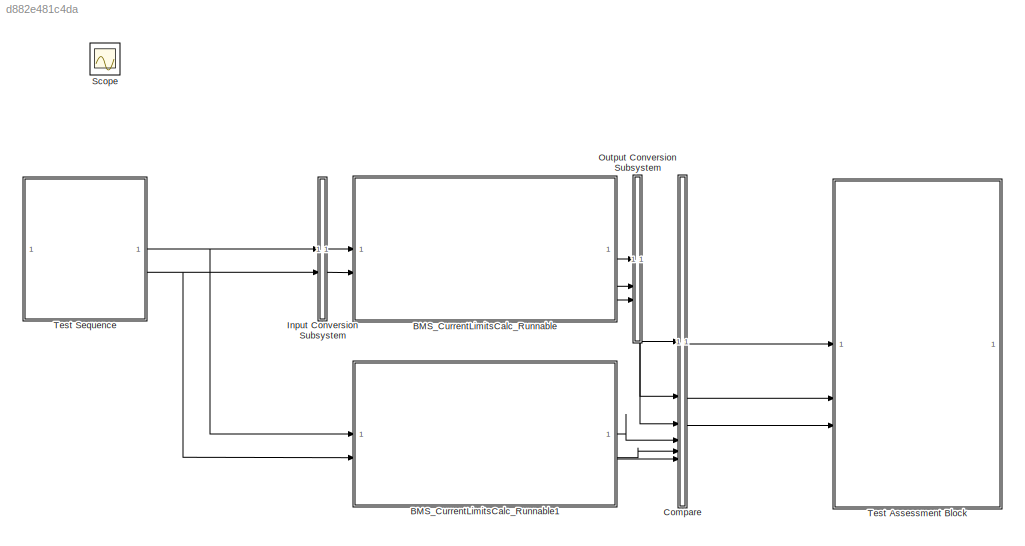
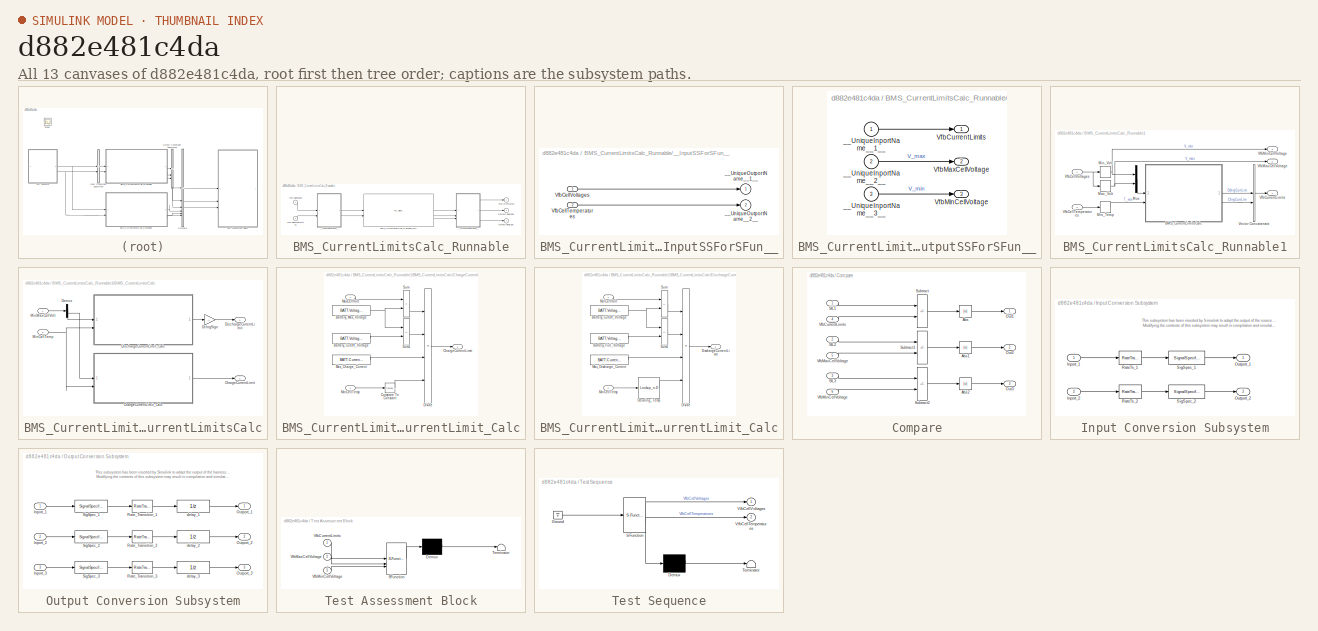
[diagram: thumbnail index - all 13 canvases of the model, root first then tree order]
MODEL slx_d882e481c4da
KIND model
CONFIG AbsTol = auto
CONFIG EnableMultiTasking = on
CONFIG FixedStep = auto
CONFIG MaxStep = auto
CONFIG MinStep = auto
CONFIG RelTol = 1e-3
CONFIG SampleTimeConstraint = Unconstrained
CONFIG SolverName = FixedStepDiscrete
CONFIG StartTime = 0.0
CONFIG StopTime = 10.0
WORKSPACE source: external: MAT-File  (data not in archive)
BLOCK [SubSystem] BMS_CurrentLimitsCalc_Runnable
  DialogController = pil_create_dialog
  LoadFcn = try\n   if ~strcmp(rtw.pil.getPILVersion, '9.13 (R2022b)_15')\n      set_param(gcb, 'DialogController', '');\n      set_param(gcb, 'DialogControllerArgs', '');\n   end\ncatch e\n      set_param(gcb, 'DialogController', '');\n      set_param(gcb, 'DialogControllerArgs', '');\nend
  Tag = __SL_testing_harness_stub_
BLOCK [Reference] BMS_CurrentLimitsCalc_Runnable/BMS_CurrentLimitsCalc_Runnable_sfcn  REF=pil_lib/PIL Block
  SourceBlock = pil_lib/PIL Block
  SourceType = XILBlock
BLOCK [Inport] BMS_CurrentLimitsCalc_Runnable/VfbCellTemperatures
  Port = 2
BLOCK [Inport] BMS_CurrentLimitsCalc_Runnable/VfbCellVoltages
BLOCK [Outport] BMS_CurrentLimitsCalc_Runnable/VfbCurrentLimits
BLOCK [Outport] BMS_CurrentLimitsCalc_Runnable/VfbMaxCellVoltage
  Port = 2
BLOCK [Outport] BMS_CurrentLimitsCalc_Runnable/VfbMinCellVoltage
  Port = 3
BLOCK [SubSystem] BMS_CurrentLimitsCalc_Runnable/__InputSSForSFun__
  PermitHierarchicalResolution = ExplicitOnly
BLOCK [Inport] BMS_CurrentLimitsCalc_Runnable/__InputSSForSFun__/VfbCellTemperatures
  Port = 2
BLOCK [Inport] BMS_CurrentLimitsCalc_Runnable/__InputSSForSFun__/VfbCellVoltages
BLOCK [Outport] BMS_CurrentLimitsCalc_Runnable/__InputSSForSFun__/__UniqueOutportName__1__
BLOCK [Outport] BMS_CurrentLimitsCalc_Runnable/__InputSSForSFun__/__UniqueOutportName__2__
  Port = 2
BLOCK [SubSystem] BMS_CurrentLimitsCalc_Runnable/__OutputSSForSFun__
  PermitHierarchicalResolution = ExplicitOnly
BLOCK [Outport] BMS_CurrentLimitsCalc_Runnable/__OutputSSForSFun__/VfbCurrentLimits
BLOCK [Outport] BMS_CurrentLimitsCalc_Runnable/__OutputSSForSFun__/VfbMaxCellVoltage
  Port = 2
BLOCK [Outport] BMS_CurrentLimitsCalc_Runnable/__OutputSSForSFun__/VfbMinCellVoltage
  Port = 3
BLOCK [Inport] BMS_CurrentLimitsCalc_Runnable/__OutputSSForSFun__/__UniqueInportName__1__
BLOCK [Inport] BMS_CurrentLimitsCalc_Runnable/__OutputSSForSFun__/__UniqueInportName__2__
  Port = 2
BLOCK [Inport] BMS_CurrentLimitsCalc_Runnable/__OutputSSForSFun__/__UniqueInportName__3__
  Port = 3
BLOCK [SubSystem] BMS_CurrentLimitsCalc_Runnable1
  FunctionInterfaceSpec = Allow arguments (Optimized)
  PartitionName = BMS_CurrentLimitsCalc_Task
  Priority = 0
  RTWFcnNameOpts = Use subsystem name
  RTWFileName = BMS_CULM_COM
  RTWSystemCode = Nonreusable function
  ScheduleAs = Periodic partition
  SystemSampleTime = Schedule.BMS_CurrentLimitsCalc_Task
  Tag = BMS_CurrentLimitsCalc_Task
  TreatAsAtomicUnit = on
BLOCK [SubSystem] BMS_CurrentLimitsCalc_Runnable1/BMS_CurrentLimitsCalc
BLOCK [Outport] BMS_CurrentLimitsCalc_Runnable1/BMS_CurrentLimitsCalc/ChargeCurrentLimit
  Port = 2
BLOCK [SubSystem] BMS_CurrentLimitsCalc_Runnable1/BMS_CurrentLimitsCalc/ChargeCurrentLimit_Calc
  FunctionInterfaceSpec = Allow arguments (Optimized)
  RTWFcnNameOpts = Use subsystem name
  RTWSystemCode = Nonreusable function
  TreatAsAtomicUnit = on
BLOCK [Constant] BMS_CurrentLimitsCalc_Runnable1/BMS_CurrentLimitsCalc/ChargeCurrentLimit_Calc/Battery_CutOff_Voltage
  OutDataTypeStr = single
  Value = BATT.Voltage.Cut_off
BLOCK [Constant] BMS_CurrentLimitsCalc_Runnable1/BMS_CurrentLimitsCalc/ChargeCurrentLimit_Calc/Battery_Max_Voltage
  OutDataTypeStr = single
  Value = BATT.Voltage.Max_Chrg
BLOCK [Outport] BMS_CurrentLimitsCalc_Runnable1/BMS_CurrentLimitsCalc/ChargeCurrentLimit_Calc/ChargeCurrentLimit
BLOCK [Reference] BMS_CurrentLimitsCalc_Runnable1/BMS_CurrentLimitsCalc/ChargeCurrentLimit_Calc/Compare To Constant  REF=simulink/Logic and Bit
Operations/Compare
To Constant
  SourceBlock = simulink/Logic and Bit\nOperations/Compare\nTo Constant
  SourceType = Compare To Constant
BLOCK [Product] BMS_CurrentLimitsCalc_Runnable1/BMS_CurrentLimitsCalc/ChargeCurrentLimit_Calc/Divide
  Inputs = */**
BLOCK [Inport] BMS_CurrentLimitsCalc_Runnable1/BMS_CurrentLimitsCalc/ChargeCurrentLimit_Calc/MaxCellVolt
BLOCK [Constant] BMS_CurrentLimitsCalc_Runnable1/BMS_CurrentLimitsCalc/ChargeCurrentLimit_Calc/Max_Charge_Current
  OutDataTypeStr = single
  Value = BATT.Current.Chrg
BLOCK [Inport] BMS_CurrentLimitsCalc_Runnable1/BMS_CurrentLimitsCalc/ChargeCurrentLimit_Calc/MinCellTemp
  Port = 2
BLOCK [Sum] BMS_CurrentLimitsCalc_Runnable1/BMS_CurrentLimitsCalc/ChargeCurrentLimit_Calc/Sum
  IconShape = rectangular
  Inputs = -+
BLOCK [Sum] BMS_CurrentLimitsCalc_Runnable1/BMS_CurrentLimitsCalc/ChargeCurrentLimit_Calc/Sum1
  IconShape = rectangular
  Inputs = +-
BLOCK [Gain] BMS_CurrentLimitsCalc_Runnable1/BMS_CurrentLimitsCalc/DchrgSign
  Gain = -1
BLOCK [Demux] BMS_CurrentLimitsCalc_Runnable1/BMS_CurrentLimitsCalc/Demux
  Outputs = 2
BLOCK [Outport] BMS_CurrentLimitsCalc_Runnable1/BMS_CurrentLimitsCalc/DischargeCurrentLimit
BLOCK [SubSystem] BMS_CurrentLimitsCalc_Runnable1/BMS_CurrentLimitsCalc/DischargeCurrentLimit_Calc
  FunctionInterfaceSpec = Allow arguments (Optimized)
  RTWFcnNameOpts = Use subsystem name
  RTWSystemCode = Nonreusable function
  TreatAsAtomicUnit = on
BLOCK [Constant] BMS_CurrentLimitsCalc_Runnable1/BMS_CurrentLimitsCalc/DischargeCurrentLimit_Calc/Battery_CutOff_Voltage
  OutDataTypeStr = single
  Value = BATT.Voltage.Cut_off
BLOCK [Constant] BMS_CurrentLimitsCalc_Runnable1/BMS_CurrentLimitsCalc/DischargeCurrentLimit_Calc/Battery_Full_Voltage
  OutDataTypeStr = single
  Value = BATT.Voltage.Full_Dchrg
BLOCK [Lookup_n-D] BMS_CurrentLimitsCalc_Runnable1/BMS_CurrentLimitsCalc/DischargeCurrentLimit_Calc/Derating_Temp
  BreakpointsForDimension1 = BATT.Temperature.T_LUT
  InputPortMap = u0
  InternalRulePriority = Speed
  NumberOfTableDimensions = 1
  RndMeth = Simplest
  Table = BATT.Temperature.derate_Fact
BLOCK [Outport] BMS_CurrentLimitsCalc_Runnable1/BMS_CurrentLimitsCalc/DischargeCurrentLimit_Calc/DischargeCurrentLimit
BLOCK [Product] BMS_CurrentLimitsCalc_Runnable1/BMS_CurrentLimitsCalc/DischargeCurrentLimit_Calc/Divide
  Inputs = */**
BLOCK [Constant] BMS_CurrentLimitsCalc_Runnable1/BMS_CurrentLimitsCalc/DischargeCurrentLimit_Calc/Max_Discharge_Current
  OutDataTypeStr = single
  Value = BATT.Current.Dchrg
BLOCK [Inport] BMS_CurrentLimitsCalc_Runnable1/BMS_CurrentLimitsCalc/DischargeCurrentLimit_Calc/MinCellTemp
  Port = 2
BLOCK [Inport] BMS_CurrentLimitsCalc_Runnable1/BMS_CurrentLimitsCalc/DischargeCurrentLimit_Calc/MinCellVolt
BLOCK [Sum] BMS_CurrentLimitsCalc_Runnable1/BMS_CurrentLimitsCalc/DischargeCurrentLimit_Calc/Sum
  IconShape = rectangular
  Inputs = +-
BLOCK [Sum] BMS_CurrentLimitsCalc_Runnable1/BMS_CurrentLimitsCalc/DischargeCurrentLimit_Calc/Sum1
  IconShape = rectangular
  Inputs = -+
BLOCK [Inport] BMS_CurrentLimitsCalc_Runnable1/BMS_CurrentLimitsCalc/MinCellTemp
  Port = 2
BLOCK [Inport] BMS_CurrentLimitsCalc_Runnable1/BMS_CurrentLimitsCalc/MinMaxCellVolt
BLOCK [MinMax] BMS_CurrentLimitsCalc_Runnable1/Max_Volt
  Function = max
  InputSameDT = on
  OutDataTypeStr = single
BLOCK [MinMax] BMS_CurrentLimitsCalc_Runnable1/Min_Temp
  InputSameDT = on
  OutDataTypeStr = single
BLOCK [MinMax] BMS_CurrentLimitsCalc_Runnable1/Min_Volt
  InputSameDT = on
  OutDataTypeStr = single
BLOCK [Mux] BMS_CurrentLimitsCalc_Runnable1/Mux
  DisplayOption = bar
  Inputs = 2
BLOCK [Concatenate] BMS_CurrentLimitsCalc_Runnable1/Vector Concatenate
BLOCK [Inport] BMS_CurrentLimitsCalc_Runnable1/VfbCellTemperatures
  Port = 2
BLOCK [Inport] BMS_CurrentLimitsCalc_Runnable1/VfbCellVoltages
BLOCK [Outport] BMS_CurrentLimitsCalc_Runnable1/VfbCurrentLimits
BLOCK [Outport] BMS_CurrentLimitsCalc_Runnable1/VfbMaxCellVoltage
  Port = 2
BLOCK [Outport] BMS_CurrentLimitsCalc_Runnable1/VfbMinCellVoltage
  Port = 3
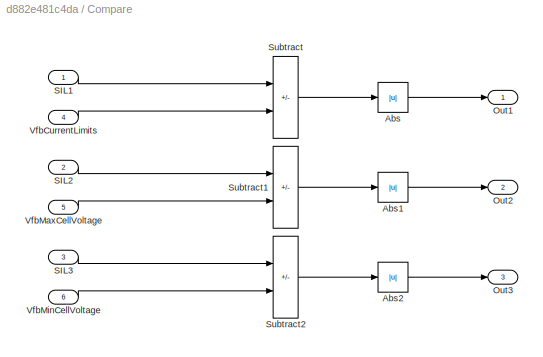
BLOCK [SubSystem] Compare
BLOCK [Abs] Compare/Abs
  SaturateOnIntegerOverflow = off
BLOCK [Abs] Compare/Abs1
  SaturateOnIntegerOverflow = off
BLOCK [Abs] Compare/Abs2
  SaturateOnIntegerOverflow = off
BLOCK [Outport] Compare/Out1
BLOCK [Outport] Compare/Out2
  Port = 2
BLOCK [Outport] Compare/Out3
  Port = 3
BLOCK [Inport] Compare/SIL1
BLOCK [Inport] Compare/SIL2
  Port = 2
BLOCK [Inport] Compare/SIL3
  Port = 3
BLOCK [Sum] Compare/Subtract
  IconShape = rectangular
  Inputs = +-
BLOCK [Sum] Compare/Subtract1
  IconShape = rectangular
  Inputs = +-
BLOCK [Sum] Compare/Subtract2
  IconShape = rectangular
  Inputs = +-
BLOCK [Inport] Compare/VfbCurrentLimits
  Port = 4
BLOCK [Inport] Compare/VfbMaxCellVoltage
  Port = 5
BLOCK [Inport] Compare/VfbMinCellVoltage
  Port = 6
BLOCK [SubSystem] Input Conversion Subsystem
  AttributesFormatString = %<Description>
  Description = Signal spec.\nand routing
  Permissions = ReadOnly
  PermitHierarchicalResolution = ExplicitOnly
  Tag = __SLT_ICS__
  TreatAsGroupedWhenPropagatingVariantConditions = off
  UserDataPersistent = on
BLOCK [Inport] Input Conversion Subsystem/Inport_1
BLOCK [Inport] Input Conversion Subsystem/Inport_2
  Port = 2
BLOCK [Outport] Input Conversion Subsystem/Outport_1
BLOCK [Outport] Input Conversion Subsystem/Outport_2
  Port = 2
BLOCK [RateTransition] Input Conversion Subsystem/RateTs_1
  OutPortSampleTime = 0.1
BLOCK [RateTransition] Input Conversion Subsystem/RateTs_2
  OutPortSampleTime = 0.1
BLOCK [SignalSpecification] Input Conversion Subsystem/SigSpec_1
  Dimensions = [3]
  OutDataTypeStr = single
  SampleTime = 0.1
  SignalType = real
  Unit = V
  VarSizeSig = No
BLOCK [SignalSpecification] Input Conversion Subsystem/SigSpec_2
  Dimensions = [3]
  OutDataTypeStr = single
  SampleTime = 0.1
  SignalType = real
  Unit = °C
  VarSizeSig = No
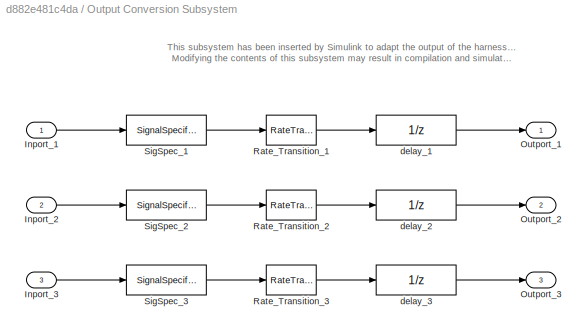
BLOCK [SubSystem] Output Conversion Subsystem
  AttributesFormatString = %<Description>
  Description = Signal spec.\nand routing
  Permissions = ReadOnly
  PermitHierarchicalResolution = ExplicitOnly
  Tag = __SLT_OCS__
  TreatAsGroupedWhenPropagatingVariantConditions = off
  UserDataPersistent = on
BLOCK [Inport] Output Conversion Subsystem/Inport_1
BLOCK [Inport] Output Conversion Subsystem/Inport_2
  Port = 2
BLOCK [Inport] Output Conversion Subsystem/Inport_3
  Port = 3
BLOCK [Outport] Output Conversion Subsystem/Outport_1
BLOCK [Outport] Output Conversion Subsystem/Outport_2
  Port = 2
BLOCK [Outport] Output Conversion Subsystem/Outport_3
  Port = 3
BLOCK [RateTransition] Output Conversion Subsystem/Rate_Transition_1
  OutPortSampleTimeOpt = Inherit
BLOCK [RateTransition] Output Conversion Subsystem/Rate_Transition_2
  OutPortSampleTimeOpt = Inherit
BLOCK [RateTransition] Output Conversion Subsystem/Rate_Transition_3
  OutPortSampleTimeOpt = Inherit
BLOCK [SignalSpecification] Output Conversion Subsystem/SigSpec_1
  Dimensions = [2]
  OutDataTypeStr = single
  SampleTime = 0.1
  SignalType = real
  Unit = A
  VarSizeSig = No
BLOCK [SignalSpecification] Output Conversion Subsystem/SigSpec_2
  Dimensions = [1]
  OutDataTypeStr = single
  SampleTime = 0.1
  SignalType = real
  Unit = V
  VarSizeSig = No
BLOCK [SignalSpecification] Output Conversion Subsystem/SigSpec_3
  Dimensions = [1]
  OutDataTypeStr = single
  SampleTime = 0.1
  SignalType = real
  Unit = V
  VarSizeSig = No
BLOCK [UnitDelay] Output Conversion Subsystem/delay_1
  SampleTime = -1
BLOCK [UnitDelay] Output Conversion Subsystem/delay_2
  SampleTime = -1
BLOCK [UnitDelay] Output Conversion Subsystem/delay_3
  SampleTime = -1
BLOCK [Scope] Scope
  Floating = off
  IOType = viewer
  NumInputPorts = 1
  ScopeSpecificationString = Simulink.scopes.TimeScopeBlockCfg('CurrentConfiguration', extmgr.ConfigurationSet(extmgr.Configuration('Core','General UI',true),extmgr.Configuration('Core','Source UI',true),extmgr.Configuration('Sources','WiredSimulink',true),extmgr.Configuration('Visuals','Time Domain',true,'SerializedDisplays',{struct('MinYLimReal','-13.9125','MaxYLimReal','19.2125','YLabelReal','','MinYLimMag','0.00000','MaxY...<+2773ch>
BLOCK [SubSystem] Test Assessment Block
  ErrorFcn = Stateflow.Translate.translate
  PermitHierarchicalResolution = ExplicitOnly
  SFBlockType = Test Sequence
  ShowPortLabels = none
  SystemSampleTime = Schedule.BMS_CurrentLimitsCalc_Task
  Tag = __SLT_ASMT__
  TreatAsAtomicUnit = on
BLOCK [Demux] Test Assessment Block/ Demux 
  Outputs = 1
BLOCK [S-Function] Test Assessment Block/ SFunction 
  EnableBusSupport = on
  FunctionName = sf_sfun
  Parameters = 1
  PortCounts = [3 1]
  SFcnIsStateOwnerBlock = off
  SFunctionDeploymentMode = off
  Tag = Stateflow S-Function 2
BLOCK [Terminator] Test Assessment Block/ Terminator 
BLOCK [Inport] Test Assessment Block/VfbCurrentLimits
BLOCK [Inport] Test Assessment Block/VfbMaxCellVoltage
  Port = 2
BLOCK [Inport] Test Assessment Block/VfbMinCellVoltage
  Port = 3
BLOCK [SubSystem] Test Sequence
  ErrorFcn = Stateflow.Translate.translate
  PermitHierarchicalResolution = ExplicitOnly
  SFBlockType = Test Sequence
  ShowPortLabels = none
  TreatAsAtomicUnit = on
BLOCK [Demux] Test Sequence/ Demux 
  Outputs = 1
BLOCK [Ground] Test Sequence/ Ground 
BLOCK [S-Function] Test Sequence/ SFunction 
  EnableBusSupport = on
  FunctionName = sf_sfun
  Parameters = 3
  PortCounts = [1 3]
  SFcnIsStateOwnerBlock = off
  SFunctionDeploymentMode = off
  Tag = Stateflow S-Function 4
BLOCK [Terminator] Test Sequence/ Terminator 
BLOCK [Outport] Test Sequence/VfbCellTemperatures
  Port = 2
BLOCK [Outport] Test Sequence/VfbCellVoltages
ANNOTATION Input Conversion Subsystem: This subsystem has been inserted by Simulink to adapt the output of the source blocks to the interface required by the harnessed component. Modifying the contents of this subsystem may result in compilation and simulation failure.
ANNOTATION Output Conversion Subsystem: This subsystem has been inserted by Simulink to adapt the output of the harnessed component to the interface required by the sink blocks. Modifying the contents of this subsystem may result in compilation and simulation failure.
LINE BMS_CurrentLimitsCalc_Runnable/__InputSSForSFun__/VfbCellTemperatures:1 -> BMS_CurrentLimitsCalc_Runnable/__InputSSForSFun__/__UniqueOutportName__2__:1
LINE BMS_CurrentLimitsCalc_Runnable/__InputSSForSFun__/VfbCellVoltages:1 -> BMS_CurrentLimitsCalc_Runnable/__InputSSForSFun__/__UniqueOutportName__1__:1
LINE BMS_CurrentLimitsCalc_Runnable/__OutputSSForSFun__/__UniqueInportName__1__:1 -> BMS_CurrentLimitsCalc_Runnable/__OutputSSForSFun__/VfbCurrentLimits:1
LINE BMS_CurrentLimitsCalc_Runnable/__OutputSSForSFun__/__UniqueInportName__2__:1 -> BMS_CurrentLimitsCalc_Runnable/__OutputSSForSFun__/VfbMaxCellVoltage:1
LINE BMS_CurrentLimitsCalc_Runnable/__OutputSSForSFun__/__UniqueInportName__3__:1 -> BMS_CurrentLimitsCalc_Runnable/__OutputSSForSFun__/VfbMinCellVoltage:1
LINE BMS_CurrentLimitsCalc_Runnable1/BMS_CurrentLimitsCalc/ChargeCurrentLimit_Calc/Battery_CutOff_Voltage:1 -> BMS_CurrentLimitsCalc_Runnable1/BMS_CurrentLimitsCalc/ChargeCurrentLimit_Calc/Sum1:2
NET BMS_CurrentLimitsCalc_Runnable1/BMS_CurrentLimitsCalc/ChargeCurrentLimit_Calc/Battery_Max_Voltage:1 -> BMS_CurrentLimitsCalc_Runnable1/BMS_CurrentLimitsCalc/ChargeCurrentLimit_Calc/Sum1:1, BMS_CurrentLimitsCalc_Runnable1/BMS_CurrentLimitsCalc/ChargeCurrentLimit_Calc/Sum:2
LINE BMS_CurrentLimitsCalc_Runnable1/BMS_CurrentLimitsCalc/ChargeCurrentLimit_Calc/Compare To Constant:1 -> BMS_CurrentLimitsCalc_Runnable1/BMS_CurrentLimitsCalc/ChargeCurrentLimit_Calc/Divide:4
LINE BMS_CurrentLimitsCalc_Runnable1/BMS_CurrentLimitsCalc/ChargeCurrentLimit_Calc/Divide:1 -> BMS_CurrentLimitsCalc_Runnable1/BMS_CurrentLimitsCalc/ChargeCurrentLimit_Calc/ChargeCurrentLimit:1
LINE BMS_CurrentLimitsCalc_Runnable1/BMS_CurrentLimitsCalc/ChargeCurrentLimit_Calc/MaxCellVolt:1 -> BMS_CurrentLimitsCalc_Runnable1/BMS_CurrentLimitsCalc/ChargeCurrentLimit_Calc/Sum:1
LINE BMS_CurrentLimitsCalc_Runnable1/BMS_CurrentLimitsCalc/ChargeCurrentLimit_Calc/Max_Charge_Current:1 -> BMS_CurrentLimitsCalc_Runnable1/BMS_CurrentLimitsCalc/ChargeCurrentLimit_Calc/Divide:3
LINE BMS_CurrentLimitsCalc_Runnable1/BMS_CurrentLimitsCalc/ChargeCurrentLimit_Calc/MinCellTemp:1 -> BMS_CurrentLimitsCalc_Runnable1/BMS_CurrentLimitsCalc/ChargeCurrentLimit_Calc/Compare To Constant:1
LINE BMS_CurrentLimitsCalc_Runnable1/BMS_CurrentLimitsCalc/ChargeCurrentLimit_Calc/Sum1:1 -> BMS_CurrentLimitsCalc_Runnable1/BMS_CurrentLimitsCalc/ChargeCurrentLimit_Calc/Divide:2
LINE BMS_CurrentLimitsCalc_Runnable1/BMS_CurrentLimitsCalc/ChargeCurrentLimit_Calc/Sum:1 -> BMS_CurrentLimitsCalc_Runnable1/BMS_CurrentLimitsCalc/ChargeCurrentLimit_Calc/Divide:1
LINE BMS_CurrentLimitsCalc_Runnable1/BMS_CurrentLimitsCalc/ChargeCurrentLimit_Calc:1 -> BMS_CurrentLimitsCalc_Runnable1/BMS_CurrentLimitsCalc/ChargeCurrentLimit:1
LINE BMS_CurrentLimitsCalc_Runnable1/BMS_CurrentLimitsCalc/DchrgSign:1 -> BMS_CurrentLimitsCalc_Runnable1/BMS_CurrentLimitsCalc/DischargeCurrentLimit:1
LINE BMS_CurrentLimitsCalc_Runnable1/BMS_CurrentLimitsCalc/Demux:1 -> BMS_CurrentLimitsCalc_Runnable1/BMS_CurrentLimitsCalc/DischargeCurrentLimit_Calc:1
LINE BMS_CurrentLimitsCalc_Runnable1/BMS_CurrentLimitsCalc/Demux:2 -> BMS_CurrentLimitsCalc_Runnable1/BMS_CurrentLimitsCalc/ChargeCurrentLimit_Calc:1
NET BMS_CurrentLimitsCalc_Runnable1/BMS_CurrentLimitsCalc/DischargeCurrentLimit_Calc/Battery_CutOff_Voltage:1 -> BMS_CurrentLimitsCalc_Runnable1/BMS_CurrentLimitsCalc/DischargeCurrentLimit_Calc/Sum1:1, BMS_CurrentLimitsCalc_Runnable1/BMS_CurrentLimitsCalc/DischargeCurrentLimit_Calc/Sum:2
LINE BMS_CurrentLimitsCalc_Runnable1/BMS_CurrentLimitsCalc/DischargeCurrentLimit_Calc/Battery_Full_Voltage:1 -> BMS_CurrentLimitsCalc_Runnable1/BMS_CurrentLimitsCalc/DischargeCurrentLimit_Calc/Sum1:2
LINE BMS_CurrentLimitsCalc_Runnable1/BMS_CurrentLimitsCalc/DischargeCurrentLimit_Calc/Derating_Temp:1 -> BMS_CurrentLimitsCalc_Runnable1/BMS_CurrentLimitsCalc/DischargeCurrentLimit_Calc/Divide:4
LINE BMS_CurrentLimitsCalc_Runnable1/BMS_CurrentLimitsCalc/DischargeCurrentLimit_Calc/Divide:1 -> BMS_CurrentLimitsCalc_Runnable1/BMS_CurrentLimitsCalc/DischargeCurrentLimit_Calc/DischargeCurrentLimit:1
LINE BMS_CurrentLimitsCalc_Runnable1/BMS_CurrentLimitsCalc/DischargeCurrentLimit_Calc/Max_Discharge_Current:1 -> BMS_CurrentLimitsCalc_Runnable1/BMS_CurrentLimitsCalc/DischargeCurrentLimit_Calc/Divide:3
LINE BMS_CurrentLimitsCalc_Runnable1/BMS_CurrentLimitsCalc/DischargeCurrentLimit_Calc/MinCellTemp:1 -> BMS_CurrentLimitsCalc_Runnable1/BMS_CurrentLimitsCalc/DischargeCurrentLimit_Calc/Derating_Temp:1
LINE BMS_CurrentLimitsCalc_Runnable1/BMS_CurrentLimitsCalc/DischargeCurrentLimit_Calc/MinCellVolt:1 -> BMS_CurrentLimitsCalc_Runnable1/BMS_CurrentLimitsCalc/DischargeCurrentLimit_Calc/Sum:1
LINE BMS_CurrentLimitsCalc_Runnable1/BMS_CurrentLimitsCalc/DischargeCurrentLimit_Calc/Sum1:1 -> BMS_CurrentLimitsCalc_Runnable1/BMS_CurrentLimitsCalc/DischargeCurrentLimit_Calc/Divide:2
LINE BMS_CurrentLimitsCalc_Runnable1/BMS_CurrentLimitsCalc/DischargeCurrentLimit_Calc/Sum:1 -> BMS_CurrentLimitsCalc_Runnable1/BMS_CurrentLimitsCalc/DischargeCurrentLimit_Calc/Divide:1
LINE BMS_CurrentLimitsCalc_Runnable1/BMS_CurrentLimitsCalc/DischargeCurrentLimit_Calc:1 -> BMS_CurrentLimitsCalc_Runnable1/BMS_CurrentLimitsCalc/DchrgSign:1
NET BMS_CurrentLimitsCalc_Runnable1/BMS_CurrentLimitsCalc/MinCellTemp:1 -> BMS_CurrentLimitsCalc_Runnable1/BMS_CurrentLimitsCalc/ChargeCurrentLimit_Calc:2, BMS_CurrentLimitsCalc_Runnable1/BMS_CurrentLimitsCalc/DischargeCurrentLimit_Calc:2
LINE BMS_CurrentLimitsCalc_Runnable1/BMS_CurrentLimitsCalc/MinMaxCellVolt:1 -> BMS_CurrentLimitsCalc_Runnable1/BMS_CurrentLimitsCalc/Demux:1
LINE BMS_CurrentLimitsCalc_Runnable1/BMS_CurrentLimitsCalc:1 -> BMS_CurrentLimitsCalc_Runnable1/Vector Concatenate:1
LINE BMS_CurrentLimitsCalc_Runnable1/BMS_CurrentLimitsCalc:2 -> BMS_CurrentLimitsCalc_Runnable1/Vector Concatenate:2
NET BMS_CurrentLimitsCalc_Runnable1/Max_Volt:1 -> BMS_CurrentLimitsCalc_Runnable1/Mux:2, BMS_CurrentLimitsCalc_Runnable1/VfbMaxCellVoltage:1
LINE BMS_CurrentLimitsCalc_Runnable1/Min_Temp:1 -> BMS_CurrentLimitsCalc_Runnable1/BMS_CurrentLimitsCalc:2
NET BMS_CurrentLimitsCalc_Runnable1/Min_Volt:1 -> BMS_CurrentLimitsCalc_Runnable1/Mux:1, BMS_CurrentLimitsCalc_Runnable1/VfbMinCellVoltage:1
LINE BMS_CurrentLimitsCalc_Runnable1/Mux:1 -> BMS_CurrentLimitsCalc_Runnable1/BMS_CurrentLimitsCalc:1
LINE BMS_CurrentLimitsCalc_Runnable1/Vector Concatenate:1 -> BMS_CurrentLimitsCalc_Runnable1/VfbCurrentLimits:1
LINE BMS_CurrentLimitsCalc_Runnable1/VfbCellTemperatures:1 -> BMS_CurrentLimitsCalc_Runnable1/Min_Temp:1
NET BMS_CurrentLimitsCalc_Runnable1/VfbCellVoltages:1 -> BMS_CurrentLimitsCalc_Runnable1/Max_Volt:1, BMS_CurrentLimitsCalc_Runnable1/Min_Volt:1
LINE BMS_CurrentLimitsCalc_Runnable1:1 -> Compare:4
LINE BMS_CurrentLimitsCalc_Runnable1:2 -> Compare:5
LINE BMS_CurrentLimitsCalc_Runnable1:3 -> Compare:6
LINE BMS_CurrentLimitsCalc_Runnable:1 -> Output Conversion Subsystem:1
LINE BMS_CurrentLimitsCalc_Runnable:2 -> Output Conversion Subsystem:2
LINE BMS_CurrentLimitsCalc_Runnable:3 -> Output Conversion Subsystem:3
LINE Compare/Abs1:1 -> Compare/Out2:1
LINE Compare/Abs2:1 -> Compare/Out3:1
LINE Compare/Abs:1 -> Compare/Out1:1
LINE Compare/SIL1:1 -> Compare/Subtract:1
LINE Compare/SIL2:1 -> Compare/Subtract1:1
LINE Compare/SIL3:1 -> Compare/Subtract2:1
LINE Compare/Subtract1:1 -> Compare/Abs1:1
LINE Compare/Subtract2:1 -> Compare/Abs2:1
LINE Compare/Subtract:1 -> Compare/Abs:1
LINE Compare/VfbCurrentLimits:1 -> Compare/Subtract:2
LINE Compare/VfbMaxCellVoltage:1 -> Compare/Subtract1:2
LINE Compare/VfbMinCellVoltage:1 -> Compare/Subtract2:2
LINE Compare:1 -> Test Assessment Block:1
LINE Compare:2 -> Test Assessment Block:2
LINE Compare:3 -> Test Assessment Block:3
LINE Input Conversion Subsystem/Inport_1:1 -> Input Conversion Subsystem/RateTs_1:1
LINE Input Conversion Subsystem/Inport_2:1 -> Input Conversion Subsystem/RateTs_2:1
LINE Input Conversion Subsystem/RateTs_1:1 -> Input Conversion Subsystem/SigSpec_1:1
LINE Input Conversion Subsystem/RateTs_2:1 -> Input Conversion Subsystem/SigSpec_2:1
LINE Input Conversion Subsystem/SigSpec_1:1 -> Input Conversion Subsystem/Outport_1:1
LINE Input Conversion Subsystem/SigSpec_2:1 -> Input Conversion Subsystem/Outport_2:1
LINE Input Conversion Subsystem:1 -> BMS_CurrentLimitsCalc_Runnable:1
LINE Input Conversion Subsystem:2 -> BMS_CurrentLimitsCalc_Runnable:2
LINE Output Conversion Subsystem/Inport_1:1 -> Output Conversion Subsystem/SigSpec_1:1
LINE Output Conversion Subsystem/Inport_2:1 -> Output Conversion Subsystem/SigSpec_2:1
LINE Output Conversion Subsystem/Inport_3:1 -> Output Conversion Subsystem/SigSpec_3:1
LINE Output Conversion Subsystem/Rate_Transition_1:1 -> Output Conversion Subsystem/delay_1:1
LINE Output Conversion Subsystem/Rate_Transition_2:1 -> Output Conversion Subsystem/delay_2:1
LINE Output Conversion Subsystem/Rate_Transition_3:1 -> Output Conversion Subsystem/delay_3:1
LINE Output Conversion Subsystem/SigSpec_1:1 -> Output Conversion Subsystem/Rate_Transition_1:1
LINE Output Conversion Subsystem/SigSpec_2:1 -> Output Conversion Subsystem/Rate_Transition_2:1
LINE Output Conversion Subsystem/SigSpec_3:1 -> Output Conversion Subsystem/Rate_Transition_3:1
LINE Output Conversion Subsystem/delay_1:1 -> Output Conversion Subsystem/Outport_1:1
LINE Output Conversion Subsystem/delay_2:1 -> Output Conversion Subsystem/Outport_2:1
LINE Output Conversion Subsystem/delay_3:1 -> Output Conversion Subsystem/Outport_3:1
LINE Output Conversion Subsystem:1 -> Compare:1
LINE Output Conversion Subsystem:2 -> Compare:2
LINE Output Conversion Subsystem:3 -> Compare:3
NET Test Sequence:1 -> BMS_CurrentLimitsCalc_Runnable1:1, Input Conversion Subsystem:1
NET Test Sequence:2 -> BMS_CurrentLimitsCalc_Runnable1:2, Input Conversion Subsystem:2
note: NET lines group one-source signal fan-out (src -> all destinations, sorted); 1:1 wires keep LINE
CHART Test Assessment Block states=4 transitions=11
  STATE_LABEL 'Scenario_1'
  STATE_LABEL 'Run\n'
  STATE_LABEL 'Run_1\n\nverify(VfbMaxCellVoltage  <= tol);\nverify(VfbMinCellVoltage   <= tol);\nverify(VfbCurrentLimits(1) <= tol);\nverify(VfbCurrentLimits(2) <= tol);\n'
  STATE_LABEL 'Run_2'
  STATE_LABEL '[t > 0\n]'
  STATE_LABEL '[~in(Scenario_1.Run.Run_1)]'
  STATE_LABEL '[~in(Scenario_1.Run.Run_2)]'
  STATE_LABEL 'Run\n'
  STATE_LABEL 'Run_1\n\nverify(VfbMaxCellVoltage  <= tol);\nverify(VfbMinCellVoltage   <= tol);\nverify(VfbCurrentLimits(1) <= tol);\nverify(VfbCurrentLimits(2) <= tol);\n'
  STATE_LABEL 'Run_2'
  STATE_LABEL '[t > 0\n]'
  STATE_LABEL '[~in(Scenario_1.Run.Run_1)]'
  STATE_LABEL '[~in(Scenario_1.Run.Run_2)]'
  STATE_LABEL 'Run_1\n\nverify(VfbMaxCellVoltage  <= tol);\nverify(VfbMinCellVoltage   <= tol);\nverify(VfbCurrentLimits(1) <= tol);\nverify(VfbCurrentLimits(2) <= tol);\n'
  STATE_LABEL 'Run_2'
CHART Test Sequence states=18 transitions=19
  STATE_LABEL 'StaticBoundary'
  STATE_LABEL "S1\n\nVs = ones(Ns, Num, 'single');\nTs  = ones(Ns, Num, 'single');\n\nVfbCellVoltages = Vs * Vmin;\nVfbCellTemperatures = Ts * Tmin;\n"
  STATE_LABEL 'S2\n\nVfbCellVoltages = Vs * Vmax;\nVfbCellTemperatures = Ts * Tmin;\n'
  STATE_LABEL 'S3\n\nVfbCellVoltages = Vs * Vmin;\nVfbCellTemperatures = Ts * Tmax;'
  STATE_LABEL 'S4\n\nVfbCellVoltages = Vs * Vmax;\nVfbCellTemperatures = Ts * Tmax;'
  STATE_LABEL "end\ncoder.extrinsic('set_param');\nset_param(bdroot, 'SimulationCommand', 'stop');"
  STATE_LABEL '[\nafter(1, sec)\n]'
  STATE_LABEL '[\nafter(1, sec)\n]'
  STATE_LABEL '[\nafter(1, sec)\n]'
  STATE_LABEL '[\nafter(1+1, sec)\n]'
  STATE_LABEL "S1\n\nVs = ones(Ns, Num, 'single');\nTs  = ones(Ns, Num, 'single');\n\nVfbCellVoltages = Vs * Vmin;\nVfbCellTemperatures = Ts * Tmin;\n"
  STATE_LABEL 'S2\n\nVfbCellVoltages = Vs * Vmax;\nVfbCellTemperatures = Ts * Tmin;\n'
  STATE_LABEL 'S3\n\nVfbCellVoltages = Vs * Vmin;\nVfbCellTemperatures = Ts * Tmax;'
  STATE_LABEL 'S4\n\nVfbCellVoltages = Vs * Vmax;\nVfbCellTemperatures = Ts * Tmax;'
  STATE_LABEL "end\ncoder.extrinsic('set_param');\nset_param(bdroot, 'SimulationCommand', 'stop');"
  STATE_LABEL 'RandamTests'
  STATE_LABEL "S1\n\nVs = rand(Ns, Num, 'single');\nTs  = rand(Ns, Num, 'single');\n\nVfbCellVoltages = Vs * Vmax;\nVfbCellTemperatures = (Ts * (Tmax - Tmin)) + Tmin;"
  STATE_LABEL "S2\n\nVs = rand(Ns, Num, 'single');\nTs  = rand(Ns, Num, 'single');\n\nVfbCellVoltages = Vs * Vmax;\nVfbCellTemperatures = (Ts * (Tmax - Tmin)) + Tmin;"
  STATE_LABEL "S3\n\nVs = rand(Ns, Num, 'single');\nTs  = rand(Ns, Num, 'single');\n\nVfbCellVoltages = Vs * Vmax;\nVfbCellTemperatures = (Ts * (Tmax - Tmin)) + Tmin;"
  STATE_LABEL "S4\n\nVs = rand(Ns, Num, 'single');\nTs  = rand(Ns, Num, 'single');\n\nVfbCellVoltages = Vs * Vmax;\nVfbCellTemperatures = (Ts * (Tmax - Tmin)) + Tmin;"
  STATE_LABEL "end\ncoder.extrinsic('set_param');\nset_param(bdroot, 'SimulationCommand', 'stop');"
  STATE_LABEL '[\nafter(1, sec)\n]'
  STATE_LABEL '[\nafter(1, sec)\n]'
  STATE_LABEL '[\nafter(1, sec)\n]'
  STATE_LABEL '[\nafter(1+1, sec)\n]'
  STATE_LABEL "S1\n\nVs = rand(Ns, Num, 'single');\nTs  = rand(Ns, Num, 'single');\n\nVfbCellVoltages = Vs * Vmax;\nVfbCellTemperatures = (Ts * (Tmax - Tmin)) + Tmin;"
  STATE_LABEL "S2\n\nVs = rand(Ns, Num, 'single');\nTs  = rand(Ns, Num, 'single');\n\nVfbCellVoltages = Vs * Vmax;\nVfbCellTemperatures = (Ts * (Tmax - Tmin)) + Tmin;"
  STATE_LABEL "S3\n\nVs = rand(Ns, Num, 'single');\nTs  = rand(Ns, Num, 'single');\n\nVfbCellVoltages = Vs * Vmax;\nVfbCellTemperatures = (Ts * (Tmax - Tmin)) + Tmin;"
  STATE_LABEL "S4\n\nVs = rand(Ns, Num, 'single');\nTs  = rand(Ns, Num, 'single');\n\nVfbCellVoltages = Vs * Vmax;\nVfbCellTemperatures = (Ts * (Tmax - Tmin)) + Tmin;"
  STATE_LABEL "end\ncoder.extrinsic('set_param');\nset_param(bdroot, 'SimulationCommand', 'stop');"
  STATE_LABEL 'RampTests'
  STATE_LABEL "Run\n\nVs = ones(Ns, Num, 'single');\nTs  = ones(Ns, Num, 'single');\ni = 1;\n"
  STATE_LABEL 'S1\n\nVfbCellVoltages = Vs * Vmin + (Vmax - Vmin) * ramp(et/5);\nVfbCellTemperatures = Ts * T_step(i);\ni = i + 1;\n'
  STATE_LABEL 'S2'
  STATE_LABEL 'S3'
  STATE_LABEL "end\ncoder.extrinsic('set_param');\nset_param(bdroot, 'SimulationCommand', 'stop');"
  STATE_LABEL '[\nafter(5, sec)\n]'
  STATE_LABEL '[\ni == length(T_step)\n]'
  STATE_LABEL '[\nafter(5, sec)\n]'
  STATE_LABEL "Run\n\nVs = ones(Ns, Num, 'single');\nTs  = ones(Ns, Num, 'single');\ni = 1;\n"
